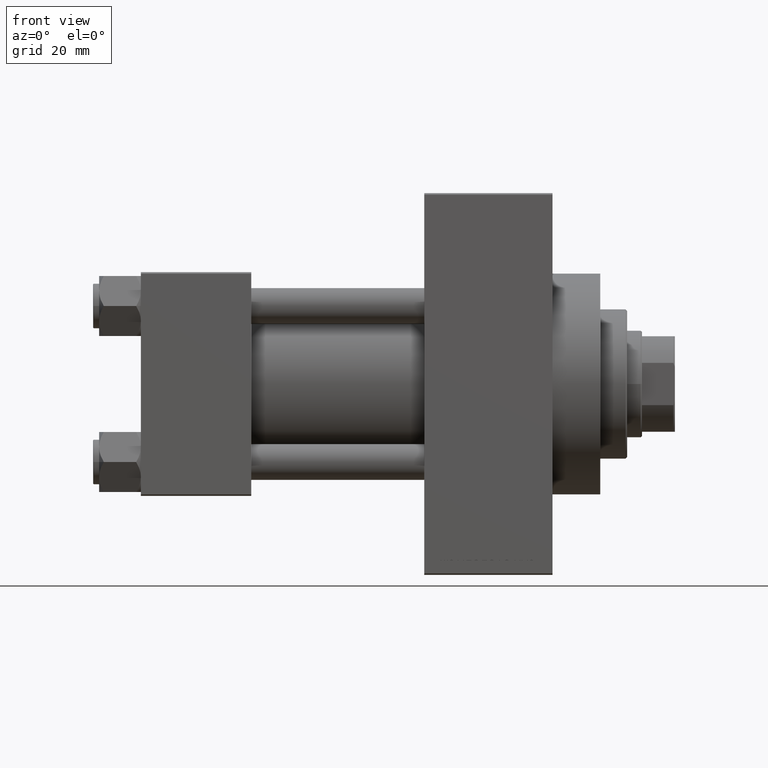
[diagram: clean part render]
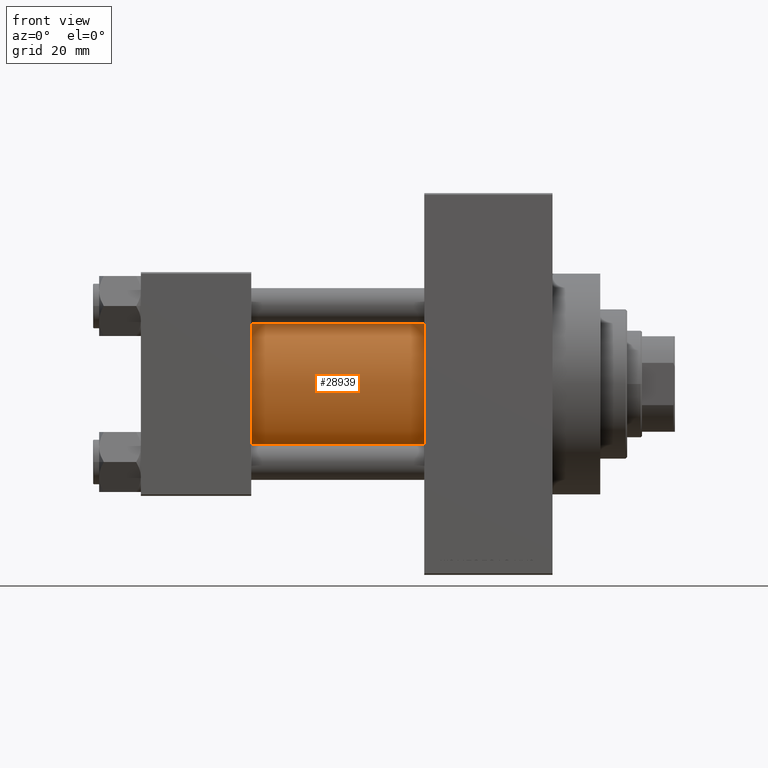
[diagram: same view with one face highlighted and labeled with its STEP entity id]
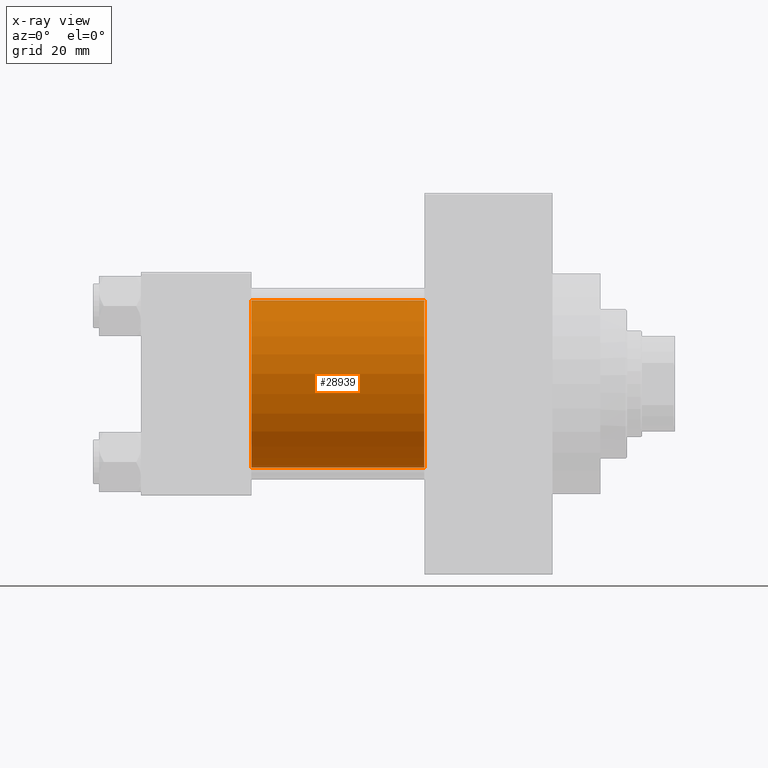
[diagram: x-ray of the same camera — body ghosted, the highlighted face saturated]
A machine part, front view. The second image highlights one B-rep face of the part: STEP entity #28939.
The next image is the same camera in x-ray: the body ghosted, the highlighted face saturated — about 2% of this face is hidden behind the body in this view.
In plain terms, the highlighted cylindrical surface (partial cylindrical patch) has radius 28 mm, axis along (-1, -0, -0).
Its self-contained STEP definition (entity closure, byte-faithful):
#216 = VECTOR ( 'NONE', #34760, 1000.000000000000000 ) ;
#1414 = LINE ( 'NONE', #30726, #6276 ) ;
#5450 = DIRECTION ( 'NONE',  ( 1.000000000000000000, 0.000000000000000000, 0.000000000000000000 ) ) ;
#6276 = VECTOR ( 'NONE', #45369, 1000.000000000000000 ) ;
#8723 = AXIS2_PLACEMENT_3D ( 'NONE', #27298, #42190, #41961 ) ;
#9056 = DIRECTION ( 'NONE',  ( 0.000000000000000000, 0.000000000000000000, -1.000000000000000000 ) ) ;
#9769 = CARTESIAN_POINT ( 'NONE',  ( 37.00000000000000000, 8.269258236473776482E-16, -28.00000000000000000 ) ) ;
#11230 = CARTESIAN_POINT ( 'NONE',  ( 95.00000000000000000, -2.602085213965210642E-15, 0.000000000000000000 ) ) ;
#11865 = VERTEX_POINT ( 'NONE', #25440 ) ;
#12197 = DIRECTION ( 'NONE',  ( -1.000000000000000000, -0.000000000000000000, -0.000000000000000000 ) ) ;
#16919 = CIRCLE ( 'NONE', #42214, 28.00000000000000000 ) ;
#17045 = VERTEX_POINT ( 'NONE', #22335 ) ;
#17930 = EDGE_CURVE ( 'NONE', #38309, #17045, #16919, .T. ) ;
#19889 = CARTESIAN_POINT ( 'NONE',  ( 95.00000000000000000, -2.602085213965210642E-15, 28.00000000000000000 ) ) ;
#20517 = ORIENTED_EDGE ( 'NONE', *, *, #25732, .T. ) ;
#21360 = EDGE_CURVE ( 'NONE', #17045, #25695, #1414, .T. ) ;
#22335 = CARTESIAN_POINT ( 'NONE',  ( 95.00000000000000000, 8.269258236473776482E-16, -28.00000000000000000 ) ) ;
#22966 = CYLINDRICAL_SURFACE ( 'NONE', #28637, 28.00000000000000000 ) ;
#23272 = CIRCLE ( 'NONE', #8723, 28.00000000000000000 ) ;
#24169 = ORIENTED_EDGE ( 'NONE', *, *, #17930, .F. ) ;
#25286 = ORIENTED_EDGE ( 'NONE', *, *, #21360, .F. ) ;
#25344 = ORIENTED_EDGE ( 'NONE', *, *, #34851, .T. ) ;
#25440 = CARTESIAN_POINT ( 'NONE',  ( 37.00000000000000000, -2.602085213965210642E-15, 28.00000000000000000 ) ) ;
#25695 = VERTEX_POINT ( 'NONE', #9769 ) ;
#25732 = EDGE_CURVE ( 'NONE', #11865, #25695, #23272, .T. ) ;
#27298 = CARTESIAN_POINT ( 'NONE',  ( 37.00000000000000000, -2.602085213965210642E-15, 0.000000000000000000 ) ) ;
#28637 = AXIS2_PLACEMENT_3D ( 'NONE', #30428, #12197, #37853 ) ;
#28939 = ADVANCED_FACE ( 'NONE', ( #41469 ), #22966, .T. ) ;
#29951 = CARTESIAN_POINT ( 'NONE',  ( 95.00000000000000000, -2.602085213965210642E-15, 28.00000000000000000 ) ) ;
#30428 = CARTESIAN_POINT ( 'NONE',  ( 95.00000000000000000, -2.602085213965210642E-15, 0.000000000000000000 ) ) ;
#30726 = CARTESIAN_POINT ( 'NONE',  ( 95.00000000000000000, 8.269258236473776482E-16, -28.00000000000000000 ) ) ;
#34760 = DIRECTION ( 'NONE',  ( -1.000000000000000000, -0.000000000000000000, -0.000000000000000000 ) ) ;
#34851 = EDGE_CURVE ( 'NONE', #38309, #11865, #35453, .T. ) ;
#35453 = LINE ( 'NONE', #19889, #216 ) ;
#37853 = DIRECTION ( 'NONE',  ( 0.000000000000000000, 0.000000000000000000, 1.000000000000000000 ) ) ;
#38309 = VERTEX_POINT ( 'NONE', #29951 ) ;
#41469 = FACE_OUTER_BOUND ( 'NONE', #47406, .T. ) ;
#41961 = DIRECTION ( 'NONE',  ( 0.000000000000000000, 0.000000000000000000, 1.000000000000000000 ) ) ;
#42190 = DIRECTION ( 'NONE',  ( 1.000000000000000000, -0.000000000000000000, 0.000000000000000000 ) ) ;
#42214 = AXIS2_PLACEMENT_3D ( 'NONE', #11230, #5450, #9056 ) ;
#45369 = DIRECTION ( 'NONE',  ( -1.000000000000000000, -0.000000000000000000, -0.000000000000000000 ) ) ;
#47406 = EDGE_LOOP ( 'NONE', ( #25286, #24169, #25344, #20517 ) ) ;